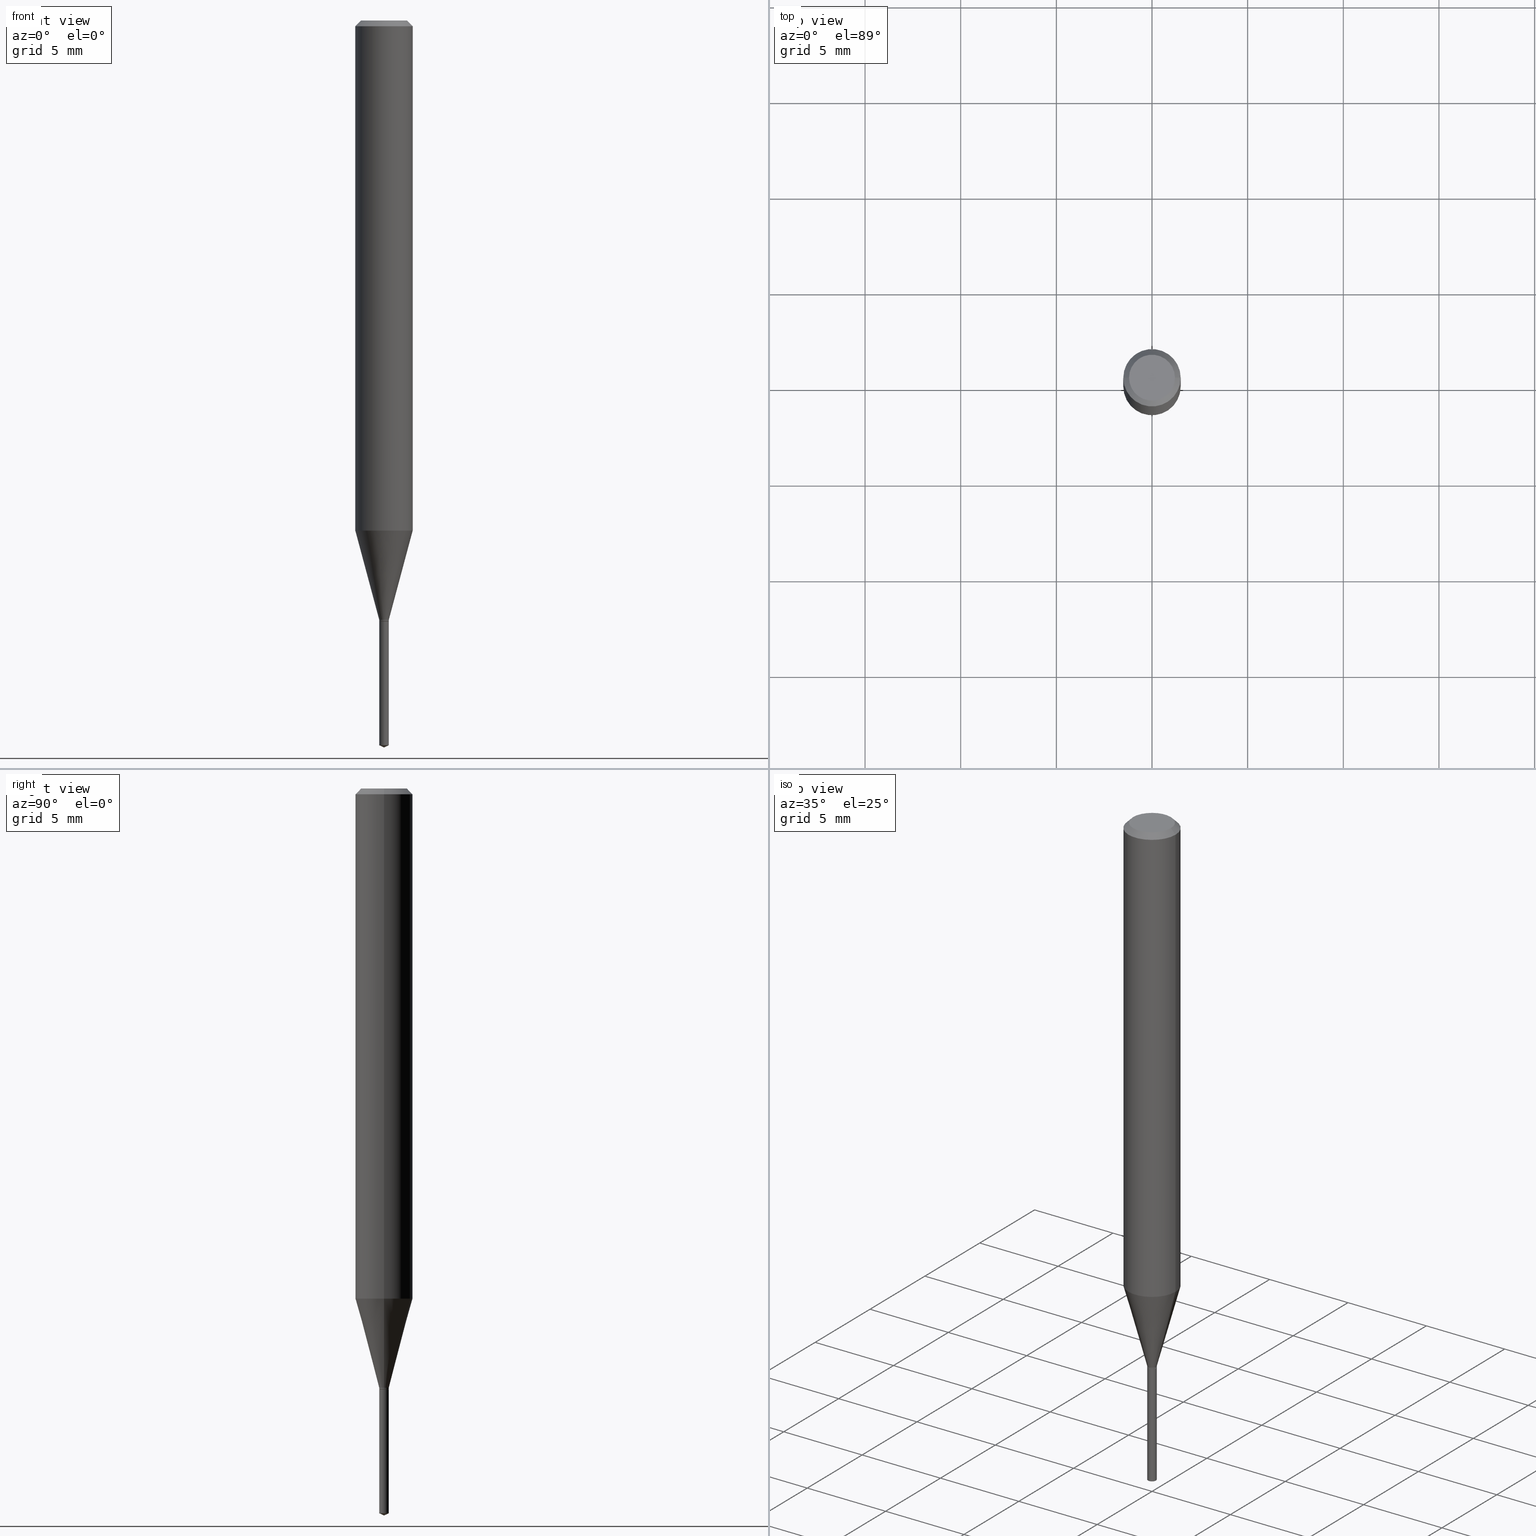
[diagram: canonical four-view strip — front | top / right | iso, engineering-drawing reading convention]
A machine part, canonical four-view strip (front | top / right | iso — engineering-drawing reading convention). The complete STEP part file that produces these views, byte-faithful:
ISO-10303-21;
HEADER;
FILE_DESCRIPTION (( 'STEP AP203' ),
    '1' );
FILE_NAME ('08091.STEP',
    '2024-04-24T11:12:27',
    ( '' ),
    ( '' ),
    'SwSTEP 2.0',
    'SolidWorks 2023',
    '' );
FILE_SCHEMA (( 'CONFIG_CONTROL_DESIGN' ));
ENDSEC;

DATA;
#1 = APPLICATION_PROTOCOL_DEFINITION ( 'international standard', 'config_control_design', 1994, #12 ) ;
#2 = CARTESIAN_POINT ( 'NONE',  ( 0.04724000000000000421, -3.852183633974369345E-16, -3.380025165621689721E-19 ) ) ;
#3 = PERSON_AND_ORGANIZATION ( #472, #237 ) ;
#4 = CARTESIAN_POINT ( 'NONE',  ( 2.888098660104664204E-31, -4.123439461173780263E-17, -0.01181000000000007218 ) ) ;
#5 = PERSON_AND_ORGANIZATION ( #472, #237 ) ;
#6 = APPROVAL ( #460, 'UNSPECIFIED' ) ;
#7 = DIRECTION ( 'NONE',  ( 0.2588190451025213501, 1.565188264969621968E-15, 0.9659258262890682012 ) ) ;
#8 = VECTOR ( 'NONE', #263, 39.37007874015748143 ) ;
#9 = AXIS2_PLACEMENT_3D ( 'NONE', #71, #361, #219 ) ;
#10 = COORDINATED_UNIVERSAL_TIME_OFFSET ( 5, 0, .BEHIND. ) ;
#11 = FACE_OUTER_BOUND ( 'NONE', #111, .T. ) ;
#12 = APPLICATION_CONTEXT ( 'configuration controlled 3d designs of mechanical parts and assemblies' ) ;
#13 = CARTESIAN_POINT ( 'NONE',  ( 3.658681167148986974E-29, -5.223583815807360950E-15, -1.496099999999999985 ) ) ;
#14 = ADVANCED_FACE ( 'NONE', ( #110 ), #68, .T. ) ;
#15 = CALENDAR_DATE ( 2024, 24, 4 ) ;
#16 = CARTESIAN_POINT ( 'NONE',  ( -6.878218237517947024E-17, -0.009850000000004313638, -1.236299999999999955 ) ) ;
#17 = ORIENTED_EDGE ( 'NONE', *, *, #230, .F. ) ;
#18 = CARTESIAN_POINT ( 'NONE',  ( 3.023333085086683703E-29, -4.316518379211780118E-15, -1.236299999999999955 ) ) ;
#19 = CARTESIAN_POINT ( 'NONE',  ( 0.05905000000000013016, -4.077292902400757654E-15, -1.049683100267611247 ) ) ;
#20 = EDGE_LOOP ( 'NONE', ( #131, #354, #483 ) ) ;
#21 = DIRECTION ( 'NONE',  ( -6.982962677686265133E-15, -1.000000000000000000, 0.000000000000000000 ) ) ;
#22 = PRODUCT_RELATED_PRODUCT_CATEGORY ( 'detail', '', ( #238 ) ) ;
#23 = VERTEX_POINT ( 'NONE', #143 ) ;
#24 = VECTOR ( 'NONE', #382, 39.37007874015748143 ) ;
#25 = AXIS2_PLACEMENT_3D ( 'NONE', #182, #367, #294 ) ;
#26 = ORIENTED_EDGE ( 'NONE', *, *, #335, .T. ) ;
#27 = CARTESIAN_POINT ( 'NONE',  ( 2.888098660104664204E-31, -4.123439461173780263E-17, -0.01181000000000007218 ) ) ;
#28 = VERTEX_POINT ( 'NONE', #254 ) ;
#29 = ORIENTED_EDGE ( 'NONE', *, *, #155, .F. ) ;
#30 = DESIGN_CONTEXT ( 'detailed design', #12, 'design' ) ;
#31 = FACE_OUTER_BOUND ( 'NONE', #63, .T. ) ;
#32 = CIRCLE ( 'NONE', #160, 0.009849999999999999381 ) ;
#33 = CONICAL_SURFACE ( 'NONE', #200, 0.009849999999999999381, 0.2617993877991500740 ) ;
#34 = CC_DESIGN_APPROVAL ( #440, ( #268 ) ) ;
#35 = VERTEX_POINT ( 'NONE', #331 ) ;
#36 = DIRECTION ( 'NONE',  ( -6.982962677686265133E-15, -1.000000000000000000, 0.000000000000000000 ) ) ;
#37 = DIRECTION ( 'NONE',  ( 1.000000000000000000, -6.982962677686276177E-15, 0.000000000000000000 ) ) ;
#38 = ORIENTED_EDGE ( 'NONE', *, *, #188, .F. ) ;
#39 = APPROVAL_DATE_TIME ( #374, #440 ) ;
#40 = DIRECTION ( 'NONE',  ( -6.982962677686265133E-15, -1.000000000000000000, 0.000000000000000000 ) ) ;
#41 = CARTESIAN_POINT ( 'NONE',  ( -9.261903463803131862E-28, 1.322371477110797904E-13, 37.87397874015748300 ) ) ;
#42 = CIRCLE ( 'NONE', #283, 0.009849999999999999381 ) ;
#43 = EDGE_CURVE ( 'NONE', #173, #23, #344, .T. ) ;
#44 = DATE_AND_TIME ( #381, #307 ) ;
#45 = DIRECTION ( 'NONE',  ( -2.445453492125453683E-29, 3.491503269448233447E-15, 1.000000000000000000 ) ) ;
#46 = ADVANCED_FACE ( 'NONE', ( #82 ), #180, .T. ) ;
#47 = APPLICATION_PROTOCOL_DEFINITION ( 'international standard', 'config_control_design', 1994, #355 ) ;
#48 = FACE_OUTER_BOUND ( 'NONE', #206, .T. ) ;
#49 =( NAMED_UNIT ( * ) PLANE_ANGLE_UNIT ( ) SI_UNIT ( $, .RADIAN. ) );
#50 = FACE_OUTER_BOUND ( 'NONE', #184, .T. ) ;
#51 = AXIS2_PLACEMENT_3D ( 'NONE', #256, #446, #175 ) ;
#52 = DIRECTION ( 'NONE',  ( -0.7071067811866191821, 7.493145998870612907E-15, 0.7071067811864758523 ) ) ;
#53 = EDGE_CURVE ( 'NONE', #284, #23, #462, .T. ) ;
#54 = APPROVAL_ROLE ( '' ) ;
#55 = CARTESIAN_POINT ( 'NONE',  ( 3.015996678668129136E-29, -4.306043935195251097E-15, -1.233299999999999841 ) ) ;
#56 = ORIENTED_EDGE ( 'NONE', *, *, #197, .F. ) ;
#57 = DIRECTION ( 'NONE',  ( 1.000000000000000000, -6.982962677686229634E-15, 0.000000000000000000 ) ) ;
#58 = VERTEX_POINT ( 'NONE', #86 ) ;
#59 = AXIS2_PLACEMENT_3D ( 'NONE', #277, #428, #201 ) ;
#60 = COORDINATED_UNIVERSAL_TIME_OFFSET ( 5, 0, .BEHIND. ) ;
#61 = LOCAL_TIME ( 7, 12, 27.00000000000000000, #60 ) ;
#62 = LINE ( 'NONE', #16, #353 ) ;
#63 = EDGE_LOOP ( 'NONE', ( #480, #358 ) ) ;
#64 = SHAPE_DEFINITION_REPRESENTATION ( #490, #140 ) ;
#65 = CYLINDRICAL_SURFACE ( 'NONE', #340, 0.009849999999999999381 ) ;
#66 = ORIENTED_EDGE ( 'NONE', *, *, #414, .F. ) ;
#67 = ORIENTED_EDGE ( 'NONE', *, *, #287, .F. ) ;
#68 = CONICAL_SURFACE ( 'NONE', #312, 0.009349999999999998937, 0.7853981633975496424 ) ;
#69 = CARTESIAN_POINT ( 'NONE',  ( 0.009349999999999998937, -4.381809080248147507E-15, -1.236299999999999955 ) ) ;
#70 = VECTOR ( 'NONE', #391, 39.37007874015748143 ) ;
#71 = CARTESIAN_POINT ( 'NONE',  ( 3.023333085086683703E-29, -4.316518379211780118E-15, -1.236299999999999955 ) ) ;
#72 = DIRECTION ( 'NONE',  ( 2.438088387897960049E-29, -3.491481338843145188E-15, -1.000000000000000000 ) ) ;
#73 = EDGE_CURVE ( 'NONE', #106, #284, #455, .T. ) ;
#74 = CARTESIAN_POINT ( 'NONE',  ( -0.009849999999999999381, -4.240419827396435201E-15, -1.235800000000000010 ) ) ;
#75 = CIRCLE ( 'NONE', #258, 0.009849999999999999381 ) ;
#76 = CC_DESIGN_PERSON_AND_ORGANIZATION_ASSIGNMENT ( #5, #156, ( #238 ) ) ;
#77 = ORIENTED_EDGE ( 'NONE', *, *, #43, .T. ) ;
#78 = PERSON_AND_ORGANIZATION ( #472, #237 ) ;
#79 = DIRECTION ( 'NONE',  ( 1.000000000000000000, -6.982962677686265922E-15, 4.876176775795935232E-29 ) ) ;
#80 = ADVANCED_FACE ( 'NONE', ( #383 ), #458, .T. ) ;
#81 = PERSON_AND_ORGANIZATION_ROLE ( 'classification_officer' ) ;
#82 = FACE_OUTER_BOUND ( 'NONE', #20, .T. ) ;
#83 = AXIS2_PLACEMENT_3D ( 'NONE', #272, #88, #158 ) ;
#84 = CC_DESIGN_DATE_AND_TIME_ASSIGNMENT ( #44, #433, ( #183 ) ) ;
#85 = AXIS2_PLACEMENT_3D ( 'NONE', #27, #119, #267 ) ;
#86 = CARTESIAN_POINT ( 'NONE',  ( 6.998845947240636105E-17, 0.009849999999995683389, -1.236299999999999955 ) ) ;
#87 = PERSON_AND_ORGANIZATION_ROLE ( 'creator' ) ;
#88 = DIRECTION ( 'NONE',  ( -2.445468806185136597E-29, 3.491481338843145583E-15, 1.000000000000000000 ) ) ;
#89 = ADVANCED_FACE ( 'NONE', ( #48 ), #423, .T. ) ;
#90 = DIRECTION ( 'NONE',  ( -6.982962677686265133E-15, -1.000000000000000000, 0.000000000000000000 ) ) ;
#91 = AXIS2_PLACEMENT_3D ( 'NONE', #279, #349, #468 ) ;
#92 = EDGE_CURVE ( 'NONE', #35, #173, #292, .T. ) ;
#93 = DIRECTION ( 'NONE',  ( -6.982962677686265133E-15, -1.000000000000000000, 0.000000000000000000 ) ) ;
#94 = ORIENTED_EDGE ( 'NONE', *, *, #287, .T. ) ;
#95 = DIRECTION ( 'NONE',  ( -2.445453492125453683E-29, 3.491503269448233447E-15, 1.000000000000000000 ) ) ;
#96 = VERTEX_POINT ( 'NONE', #231 ) ;
#97 = DIRECTION ( 'NONE',  ( -6.982962677686265133E-15, -1.000000000000000000, 0.000000000000000000 ) ) ;
#98 = AXIS2_PLACEMENT_3D ( 'NONE', #359, #134, #21 ) ;
#99 = DATE_AND_TIME ( #15, #61 ) ;
#100 = CARTESIAN_POINT ( 'NONE',  ( -6.878218237517947024E-17, -0.009850000000004313638, -1.236299999999999955 ) ) ;
#101 = DIRECTION ( 'NONE',  ( -2.445453492125453683E-29, 3.491503269448233447E-15, 1.000000000000000000 ) ) ;
#102 = VERTEX_POINT ( 'NONE', #337 ) ;
#103 = EDGE_CURVE ( 'NONE', #360, #323, #193, .T. ) ;
#104 = ORIENTED_EDGE ( 'NONE', *, *, #484, .T. ) ;
#105 = PLANE ( 'NONE',  #9 ) ;
#106 = VERTEX_POINT ( 'NONE', #196 ) ;
#107 = FACE_OUTER_BOUND ( 'NONE', #250, .T. ) ;
#108 = EDGE_CURVE ( 'NONE', #102, #478, #32, .T. ) ;
#109 = DIRECTION ( 'NONE',  ( 1.000000000000000000, -6.982962677686266711E-15, 4.876176775795936353E-29 ) ) ;
#110 = FACE_OUTER_BOUND ( 'NONE', #297, .T. ) ;
#111 = EDGE_LOOP ( 'NONE', ( #338, #77, #104, #442 ) ) ;
#112 = ADVANCED_FACE ( 'NONE', ( #273 ), #352, .T. ) ;
#113 = APPROVAL_STATUS ( 'not_yet_approved' ) ;
#114 = CIRCLE ( 'NONE', #450, 0.04724000000000000421 ) ;
#115 = DATE_TIME_ROLE ( 'creation_date' ) ;
#116 = DIRECTION ( 'NONE',  ( -2.445468806185136597E-29, 3.491481338843145583E-15, 1.000000000000000000 ) ) ;
#117 = SECURITY_CLASSIFICATION_LEVEL ( 'unclassified' ) ;
#118 = DIRECTION ( 'NONE',  ( 1.000000000000000000, -6.982962677686266711E-15, 0.000000000000000000 ) ) ;
#119 = DIRECTION ( 'NONE',  ( -2.445468806185136597E-29, 3.491481338843145583E-15, 1.000000000000000000 ) ) ;
#120 = DIRECTION ( 'NONE',  ( -2.445453492125453683E-29, 3.491503269448233447E-15, 1.000000000000000000 ) ) ;
#121 = CIRCLE ( 'NONE', #51, 0.009849999999999999381 ) ;
#122 = APPROVAL_PERSON_ORGANIZATION ( #315, #343, #54 ) ;
#123 = DIMENSIONAL_EXPONENTS ( 1.000000000000000000, 0.000000000000000000, 0.000000000000000000, 0.000000000000000000, 0.000000000000000000, 0.000000000000000000, 0.000000000000000000 ) ;
#124 = DIRECTION ( 'NONE',  ( -1.000000000000000000, 6.982962677686266711E-15, 0.000000000000000000 ) ) ;
#125 = CARTESIAN_POINT ( 'NONE',  ( -9.261903463803131862E-28, 1.322371477110797904E-13, 37.87397874015748300 ) ) ;
#126 = CARTESIAN_POINT ( 'NONE',  ( -0.009349999999999998937, -4.247433406244099767E-15, -1.236299999999999955 ) ) ;
#127 = AXIS2_PLACEMENT_3D ( 'NONE', #159, #306, #79 ) ;
#128 = VECTOR ( 'NONE', #319, 39.37007874015748143 ) ;
#129 = EDGE_CURVE ( 'NONE', #473, #241, #233, .T. ) ;
#130 = LINE ( 'NONE', #235, #70 ) ;
#131 = ORIENTED_EDGE ( 'NONE', *, *, #194, .F. ) ;
#132 = DIRECTION ( 'NONE',  ( -2.445468806185136597E-29, 3.491481338843145583E-15, 1.000000000000000000 ) ) ;
#133 = ORIENTED_EDGE ( 'NONE', *, *, #191, .T. ) ;
#134 = DIRECTION ( 'NONE',  ( -2.445453492125453683E-29, 3.491503269448233447E-15, 1.000000000000000000 ) ) ;
#135 = EDGE_LOOP ( 'NONE', ( #371, #325, #289, #67 ) ) ;
#136 = CARTESIAN_POINT ( 'NONE',  ( 3.023333085086683703E-29, -4.316518379211780118E-15, -1.236299999999999955 ) ) ;
#137 = EDGE_LOOP ( 'NONE', ( #430, #329, #477, #38 ) ) ;
#138 = ADVANCED_FACE ( 'NONE', ( #50 ), #424, .F. ) ;
#139 = DIRECTION ( 'NONE',  ( 1.000000000000000000, -6.982962677686266711E-15, 4.876176775795936353E-29 ) ) ;
#140 = ADVANCED_BREP_SHAPE_REPRESENTATION ( '08091', ( #397, #234, #299 ), #451 ) ;
#141 = ORIENTED_EDGE ( 'NONE', *, *, #92, .F. ) ;
#142 = LINE ( 'NONE', #145, #322 ) ;
#143 = CARTESIAN_POINT ( 'NONE',  ( 0.05904999999999999832, -4.535783407291118600E-16, -0.01181000000000007218 ) ) ;
#144 = AXIS2_PLACEMENT_3D ( 'NONE', #304, #302, #347 ) ;
#145 = CARTESIAN_POINT ( 'NONE',  ( -0.009849999999999999381, -4.236055475722881048E-15, -1.233299999999999841 ) ) ;
#146 = APPROVAL_PERSON_ORGANIZATION ( #486, #6, #271 ) ;
#147 = CARTESIAN_POINT ( 'NONE',  ( 4.132873053354867254E-48, -5.900647395337818946E-34, -1.690012582823346072E-19 ) ) ;
#148 = ADVANCED_FACE ( 'NONE', ( #11 ), #152, .T. ) ;
#149 = EDGE_LOOP ( 'NONE', ( #165, #286 ) ) ;
#150 = CARTESIAN_POINT ( 'NONE',  ( 0.000000000000000000, 0.000000000000000000, 0.000000000000000000 ) ) ;
#151 = LENGTH_MEASURE_WITH_UNIT ( LENGTH_MEASURE( 0.02539999999999999897 ), #456 );
#152 = CONICAL_SURFACE ( 'NONE', #350, 0.05904999999999999832, 0.7853981633974452814 ) ;
#153 = CARTESIAN_POINT ( 'NONE',  ( 3.022110350683592022E-29, -4.314772638542359403E-15, -1.235800000000000010 ) ) ;
#154 = CIRCLE ( 'NONE', #91, 0.05905000000000013710 ) ;
#155 = EDGE_CURVE ( 'NONE', #241, #373, #75, .T. ) ;
#156 = PERSON_AND_ORGANIZATION_ROLE ( 'design_owner' ) ;
#157 = DIRECTION ( 'NONE',  ( 0.7071067811865453523, -7.319954787623248157E-15, -0.7071067811865496822 ) ) ;
#158 = DIRECTION ( 'NONE',  ( 1.000000000000000000, -6.982962677686266711E-15, 4.876185090822587894E-29 ) ) ;
#159 = CARTESIAN_POINT ( 'NONE',  ( 0.000000000000000000, 0.000000000000000000, 0.000000000000000000 ) ) ;
#160 = AXIS2_PLACEMENT_3D ( 'NONE', #189, #120, #40 ) ;
#161 = AXIS2_PLACEMENT_3D ( 'NONE', #55, #466, #470 ) ;
#162 = DIRECTION ( 'NONE',  ( -6.982962677686268288E-15, -1.000000000000000000, 3.520397390770351318E-15 ) ) ;
#163 = DIRECTION ( 'NONE',  ( -2.445453492125453683E-29, 3.491503269448233447E-15, 1.000000000000000000 ) ) ;
#164 = CARTESIAN_POINT ( 'NONE',  ( 3.658642969568891371E-29, -5.223638041421501490E-15, -1.496099999999999985 ) ) ;
#165 = ORIENTED_EDGE ( 'NONE', *, *, #92, .T. ) ;
#166 = VECTOR ( 'NONE', #334, 39.37007874015748143 ) ;
#167 = LINE ( 'NONE', #13, #205 ) ;
#168 = ORIENTED_EDGE ( 'NONE', *, *, #222, .F. ) ;
#169 = CARTESIAN_POINT ( 'NONE',  ( 0.009849999999999999381, -6.878218237520971813E-17, 4.803034124158995733E-31 ) ) ;
#170 = ORIENTED_EDGE ( 'NONE', *, *, #129, .T. ) ;
#171 = DIRECTION ( 'NONE',  ( -2.445468806185136597E-29, 3.491481338843145583E-15, 1.000000000000000000 ) ) ;
#172 = EDGE_CURVE ( 'NONE', #173, #35, #114, .T. ) ;
#173 = VERTEX_POINT ( 'NONE', #2 ) ;
#174 = CIRCLE ( 'NONE', #85, 0.05904999999999999832 ) ;
#175 = DIRECTION ( 'NONE',  ( 1.000000000000000000, -6.982962677686278543E-15, 0.000000000000000000 ) ) ;
#176 = EDGE_LOOP ( 'NONE', ( #203, #141, #390, #489 ) ) ;
#177 = ORIENTED_EDGE ( 'NONE', *, *, #326, .T. ) ;
#178 = PLANE ( 'NONE',  #333 ) ;
#179 = DIRECTION ( 'NONE',  ( -2.445468806185136597E-29, 3.491481338843145583E-15, 1.000000000000000000 ) ) ;
#180 = CONICAL_SURFACE ( 'NONE', #266, 84.42940631927679362, 1.134464013796327109 ) ;
#181 = APPROVAL_PERSON_ORGANIZATION ( #78, #440, #260 ) ;
#182 = CARTESIAN_POINT ( 'NONE',  ( 2.566967278084148050E-29, -3.664948956283382734E-15, -1.049683100267611247 ) ) ;
#183 = SECURITY_CLASSIFICATION ( '', '', #117 ) ;
#184 = EDGE_LOOP ( 'NONE', ( #209, #26 ) ) ;
#185 = CARTESIAN_POINT ( 'NONE',  ( 3.015996678668129136E-29, -4.306043935195251097E-15, -1.233299999999999841 ) ) ;
#186 = DATE_AND_TIME ( #449, #364 ) ;
#187 = DIRECTION ( 'NONE',  ( 2.445468806185136597E-29, -3.491481338843145583E-15, -1.000000000000000000 ) ) ;
#188 = EDGE_CURVE ( 'NONE', #323, #23, #236, .T. ) ;
#189 = CARTESIAN_POINT ( 'NONE',  ( 3.647429615484133515E-29, -5.207573998691215468E-15, -1.491506869567173377 ) ) ;
#190 = CIRCLE ( 'NONE', #25, 0.05905000000000013710 ) ;
#191 = EDGE_CURVE ( 'NONE', #373, #28, #417, .T. ) ;
#192 = PERSON_AND_ORGANIZATION ( #472, #237 ) ;
#193 = LINE ( 'NONE', #375, #332 ) ;
#194 = EDGE_CURVE ( 'NONE', #96, #478, #434, .T. ) ;
#195 = MECHANICAL_CONTEXT ( 'NONE', #355, 'mechanical' ) ;
#196 = CARTESIAN_POINT ( 'NONE',  ( 0.009849999999999999381, -4.374826117570460704E-15, -1.233299999999999841 ) ) ;
#197 = EDGE_CURVE ( 'NONE', #373, #241, #42, .T. ) ;
#198 = DIRECTION ( 'NONE',  ( -2.445468806185136877E-29, 3.491481338843145188E-15, 1.000000000000000000 ) ) ;
#199 = AXIS2_PLACEMENT_3D ( 'NONE', #125, #45, #162 ) ;
#200 = AXIS2_PLACEMENT_3D ( 'NONE', #185, #253, #372 ) ;
#201 = DIRECTION ( 'NONE',  ( 1.000000000000000000, -6.982962677686278543E-15, 0.000000000000000000 ) ) ;
#202 = CARTESIAN_POINT ( 'NONE',  ( -0.009349999999999998937, -4.250082633418210968E-15, -1.236299999999999955 ) ) ;
#203 = ORIENTED_EDGE ( 'NONE', *, *, #43, .F. ) ;
#204 = FACE_OUTER_BOUND ( 'NONE', #411, .T. ) ;
#205 = VECTOR ( 'NONE', #317, 39.37007874015748854 ) ;
#206 = EDGE_LOOP ( 'NONE', ( #280, #133, #217, #482 ) ) ;
#207 = VECTOR ( 'NONE', #52, 39.37007874015748143 ) ;
#208 = DIRECTION ( 'NONE',  ( -2.445453492125453683E-29, 3.491503269448233447E-15, 1.000000000000000000 ) ) ;
#209 = ORIENTED_EDGE ( 'NONE', *, *, #401, .T. ) ;
#210 = LINE ( 'NONE', #169, #128 ) ;
#211 = VERTEX_POINT ( 'NONE', #100 ) ;
#212 = ORIENTED_EDGE ( 'NONE', *, *, #191, .F. ) ;
#213 = VECTOR ( 'NONE', #345, 39.37007874015748143 ) ;
#214 = AXIS2_PLACEMENT_3D ( 'NONE', #242, #132, #465 ) ;
#215 = ADVANCED_FACE ( 'NONE', ( #387 ), #426, .T. ) ;
#216 = ORIENTED_EDGE ( 'NONE', *, *, #197, .T. ) ;
#217 = ORIENTED_EDGE ( 'NONE', *, *, #404, .F. ) ;
#218 = AXIS2_PLACEMENT_3D ( 'NONE', #281, #171, #321 ) ;
#219 = DIRECTION ( 'NONE',  ( 1.000000000000000000, -6.982962677686265922E-15, 4.876176775795935793E-29 ) ) ;
#220 = DIRECTION ( 'NONE',  ( -2.445468806185136597E-29, 3.491481338843145583E-15, 1.000000000000000000 ) ) ;
#221 = COORDINATED_UNIVERSAL_TIME_OFFSET ( 5, 0, .BEHIND. ) ;
#222 = EDGE_CURVE ( 'NONE', #28, #106, #293, .T. ) ;
#223 = DIRECTION ( 'NONE',  ( -6.982962677686268288E-15, -1.000000000000000000, 3.520397390770351318E-15 ) ) ;
#224 = ORIENTED_EDGE ( 'NONE', *, *, #53, .F. ) ;
#225 = DIRECTION ( 'NONE',  ( 1.000000000000000000, 0.000000000000000000, 0.000000000000000000 ) ) ;
#226 = CARTESIAN_POINT ( 'NONE',  ( 8.265746106709734507E-48, -1.180129479067563789E-33, -3.380025165646692144E-19 ) ) ;
#227 = COORDINATED_UNIVERSAL_TIME_OFFSET ( 5, 0, .BEHIND. ) ;
#228 = CARTESIAN_POINT ( 'NONE',  ( -0.009849999999999999381, 6.998845947236986391E-17, -4.845151063901081251E-31 ) ) ;
#229 = AXIS2_PLACEMENT_3D ( 'NONE', #400, #179, #139 ) ;
#230 = EDGE_CURVE ( 'NONE', #336, #373, #395, .T. ) ;
#231 = CARTESIAN_POINT ( 'NONE',  ( 3.658642969568890811E-29, -5.223638041421501490E-15, -1.496099999999999985 ) ) ;
#232 =( NAMED_UNIT ( * ) SI_UNIT ( $, .STERADIAN. ) SOLID_ANGLE_UNIT ( ) );
#233 = LINE ( 'NONE', #385, #8 ) ;
#234 = MANIFOLD_SOLID_BREP ( 'Body-Move/Copy2[2]', #363 ) ;
#235 = CARTESIAN_POINT ( 'NONE',  ( 6.998845947240008714E-17, 0.009849999999995683389, -1.236299999999999955 ) ) ;
#236 = CIRCLE ( 'NONE', #275, 0.05904999999999999832 ) ;
#237 = ORGANIZATION ( 'UNSPECIFIED', 'UNSPECIFIED', '' ) ;
#238 = PRODUCT ( '08091', '08091', '', ( #195 ) ) ;
#239 = EDGE_CURVE ( 'NONE', #102, #58, #130, .T. ) ;
#240 = CARTESIAN_POINT ( 'NONE',  ( 0.009849999999999999381, -4.383554820917568222E-15, -1.235800000000000010 ) ) ;
#241 = VERTEX_POINT ( 'NONE', #240 ) ;
#242 = CARTESIAN_POINT ( 'NONE',  ( 3.023333085086683703E-29, -4.316518379211780118E-15, -1.236299999999999955 ) ) ;
#243 = CONICAL_SURFACE ( 'NONE', #59, 0.009849999999999999381, 0.2617993877991500740 ) ;
#244 = CC_DESIGN_SECURITY_CLASSIFICATION ( #183, ( #268 ) ) ;
#245 = ADVANCED_FACE ( 'NONE', ( #204 ), #243, .T. ) ;
#246 = APPROVAL_DATE_TIME ( #99, #343 ) ;
#247 = CARTESIAN_POINT ( 'NONE',  ( 3.023333085086683703E-29, -4.316518379211780118E-15, -1.236299999999999955 ) ) ;
#248 = DIRECTION ( 'NONE',  ( -2.445468806185136597E-29, 3.491481338843145583E-15, 1.000000000000000000 ) ) ;
#249 = ADVANCED_FACE ( 'NONE', ( #348 ), #410, .T. ) ;
#250 = EDGE_LOOP ( 'NONE', ( #427, #328, #439, #66 ) ) ;
#251 = CIRCLE ( 'NONE', #380, 0.009849999999999999381 ) ;
#252 = UNCERTAINTY_MEASURE_WITH_UNIT (LENGTH_MEASURE( 1.000000000000000082E-05 ), #305, 'distance_accuracy_value', 'NONE');
#253 = DIRECTION ( 'NONE',  ( -2.445468806185136597E-29, 3.491481338843145583E-15, 1.000000000000000000 ) ) ;
#254 = CARTESIAN_POINT ( 'NONE',  ( -0.009849999999999999381, -4.240419827396435201E-15, -1.233299999999999841 ) ) ;
#255 = FACE_OUTER_BOUND ( 'NONE', #368, .T. ) ;
#256 = CARTESIAN_POINT ( 'NONE',  ( 3.015996678668129136E-29, -4.306043935195251097E-15, -1.233299999999999841 ) ) ;
#257 = EDGE_LOOP ( 'NONE', ( #485, #406, #94, #412 ) ) ;
#258 = AXIS2_PLACEMENT_3D ( 'NONE', #153, #300, #453 ) ;
#259 = EDGE_CURVE ( 'NONE', #284, #360, #154, .T. ) ;
#260 = APPROVAL_ROLE ( '' ) ;
#261 = ORIENTED_EDGE ( 'NONE', *, *, #129, .F. ) ;
#262 = CALENDAR_DATE ( 2024, 24, 4 ) ;
#263 = DIRECTION ( 'NONE',  ( 0.7071067811866191821, -2.468850131083007662E-15, 0.7071067811864758523 ) ) ;
#264 = PERSON_AND_ORGANIZATION ( #472, #237 ) ;
#265 = CARTESIAN_POINT ( 'NONE',  ( 0.05905000000000006771, -4.123439461173745257E-16, 2.879382386107503723E-30 ) ) ;
#266 = AXIS2_PLACEMENT_3D ( 'NONE', #41, #457, #223 ) ;
#267 = DIRECTION ( 'NONE',  ( 1.000000000000000000, -6.982962677686266711E-15, 0.000000000000000000 ) ) ;
#268 = PRODUCT_DEFINITION_FORMATION_WITH_SPECIFIED_SOURCE ( 'ANY', '', #238, .NOT_KNOWN. ) ;
#269 = CARTESIAN_POINT ( 'NONE',  ( 2.888098660104664204E-31, -4.123439461173780263E-17, -0.01181000000000007218 ) ) ;
#270 = CC_DESIGN_PERSON_AND_ORGANIZATION_ASSIGNMENT ( #3, #376, ( #268 ) ) ;
#271 = APPROVAL_ROLE ( '' ) ;
#272 = CARTESIAN_POINT ( 'NONE',  ( 8.265746106709734507E-48, -1.180129479067563789E-33, -3.380025165646692144E-19 ) ) ;
#273 = FACE_OUTER_BOUND ( 'NONE', #176, .T. ) ;
#274 = DIRECTION ( 'NONE',  ( -2.445468806185136597E-29, 3.491481338843145583E-15, 1.000000000000000000 ) ) ;
#275 = AXIS2_PLACEMENT_3D ( 'NONE', #377, #342, #118 ) ;
#276 = EDGE_CURVE ( 'NONE', #336, #473, #481, .T. ) ;
#277 = CARTESIAN_POINT ( 'NONE',  ( 3.015996678668129136E-29, -4.306043935195251097E-15, -1.233299999999999841 ) ) ;
#278 = EDGE_LOOP ( 'NONE', ( #467, #314, #296, #224 ) ) ;
#279 = CARTESIAN_POINT ( 'NONE',  ( 2.566967278084148050E-29, -3.664948956283382734E-15, -1.049683100267611247 ) ) ;
#280 = ORIENTED_EDGE ( 'NONE', *, *, #155, .T. ) ;
#281 = CARTESIAN_POINT ( 'NONE',  ( 3.023333085086683703E-29, -4.316518379211780118E-15, -1.236299999999999955 ) ) ;
#282 = AXIS2_PLACEMENT_3D ( 'NONE', #4, #461, #124 ) ;
#283 = AXIS2_PLACEMENT_3D ( 'NONE', #311, #389, #57 ) ;
#284 = VERTEX_POINT ( 'NONE', #19 ) ;
#285 = DIRECTION ( 'NONE',  ( 1.000000000000000000, -6.982962677686276177E-15, 0.000000000000000000 ) ) ;
#286 = ORIENTED_EDGE ( 'NONE', *, *, #172, .T. ) ;
#287 = EDGE_CURVE ( 'NONE', #478, #211, #62, .T. ) ;
#288 = LINE ( 'NONE', #330, #166 ) ;
#289 = ORIENTED_EDGE ( 'NONE', *, *, #401, .F. ) ;
#290 = CC_DESIGN_PERSON_AND_ORGANIZATION_ASSIGNMENT ( #192, #413, ( #268 ) ) ;
#291 = CARTESIAN_POINT ( 'NONE',  ( 3.023333085086683703E-29, -4.316518379211780118E-15, -1.236299999999999955 ) ) ;
#292 = CIRCLE ( 'NONE', #83, 0.04724000000000000421 ) ;
#293 = CIRCLE ( 'NONE', #161, 0.009849999999999999381 ) ;
#294 = DIRECTION ( 'NONE',  ( 1.000000000000000000, -6.982962677686264344E-15, 0.000000000000000000 ) ) ;
#295 = CARTESIAN_POINT ( 'NONE',  ( 0.000000000000000000, 0.000000000000000000, 0.000000000000000000 ) ) ;
#296 = ORIENTED_EDGE ( 'NONE', *, *, #484, .F. ) ;
#297 = EDGE_LOOP ( 'NONE', ( #177, #469, #29, #261 ) ) ;
#298 = DATE_AND_TIME ( #341, #418 ) ;
#299 = AXIS2_PLACEMENT_3D ( 'NONE', #384, #416, #225 ) ;
#300 = DIRECTION ( 'NONE',  ( -2.445468806185136597E-29, 3.491481338843145583E-15, 1.000000000000000000 ) ) ;
#301 = ADVANCED_FACE ( 'NONE', ( #351 ), #65, .T. ) ;
#302 = DIRECTION ( 'NONE',  ( 2.445453492125453403E-29, -3.491503269448233447E-15, -1.000000000000000000 ) ) ;
#303 = EDGE_CURVE ( 'NONE', #96, #102, #167, .T. ) ;
#304 = CARTESIAN_POINT ( 'NONE',  ( 3.023333085086683703E-29, -4.316518379211780118E-15, -1.236299999999999955 ) ) ;
#305 =( CONVERSION_BASED_UNIT ( 'INCH', #151 ) LENGTH_UNIT ( ) NAMED_UNIT ( #123 ) );
#306 = DIRECTION ( 'NONE',  ( -2.445468806185136597E-29, 3.491481338843145583E-15, 1.000000000000000000 ) ) ;
#307 = LOCAL_TIME ( 7, 12, 27.00000000000000000, #227 ) ;
#308 = CARTESIAN_POINT ( 'NONE',  ( 0.05904999999999999832, -4.463468013801466955E-16, -0.01181000000000007218 ) ) ;
#309 = EDGE_CURVE ( 'NONE', #241, #106, #210, .T. ) ;
#310 = CARTESIAN_POINT ( 'NONE',  ( 3.023333085086683703E-29, -4.316518379211780118E-15, -1.236299999999999955 ) ) ;
#311 = CARTESIAN_POINT ( 'NONE',  ( 3.022110350683592022E-29, -4.314772638542359403E-15, -1.235800000000000010 ) ) ;
#312 = AXIS2_PLACEMENT_3D ( 'NONE', #402, #220, #37 ) ;
#313 = AXIS2_PLACEMENT_3D ( 'NONE', #150, #248, #443 ) ;
#314 = ORIENTED_EDGE ( 'NONE', *, *, #103, .T. ) ;
#315 = PERSON_AND_ORGANIZATION ( #472, #237 ) ;
#316 = EDGE_CURVE ( 'NONE', #478, #102, #464, .T. ) ;
#317 = DIRECTION ( 'NONE',  ( 6.439704144417063485E-15, 0.9063077870366568201, 0.4226182617406846753 ) ) ;
#318 = ORIENTED_EDGE ( 'NONE', *, *, #479, .T. ) ;
#319 = DIRECTION ( 'NONE',  ( -2.445468806185136877E-29, 3.491481338843145188E-15, 1.000000000000000000 ) ) ;
#320 = ORIENTED_EDGE ( 'NONE', *, *, #73, .F. ) ;
#321 = DIRECTION ( 'NONE',  ( 1.000000000000000000, -6.982962677686276177E-15, 0.000000000000000000 ) ) ;
#322 = VECTOR ( 'NONE', #366, 39.37007874015747433 ) ;
#323 = VERTEX_POINT ( 'NONE', #463 ) ;
#324 = CYLINDRICAL_SURFACE ( 'NONE', #229, 0.05905000000000006771 ) ;
#325 = ORIENTED_EDGE ( 'NONE', *, *, #239, .T. ) ;
#326 = EDGE_CURVE ( 'NONE', #473, #336, #445, .T. ) ;
#327 = CARTESIAN_POINT ( 'NONE',  ( -0.05905000000000013016, -3.245373470817042452E-15, -1.049683100267611247 ) ) ;
#328 = ORIENTED_EDGE ( 'NONE', *, *, #222, .T. ) ;
#329 = ORIENTED_EDGE ( 'NONE', *, *, #414, .T. ) ;
#330 = CARTESIAN_POINT ( 'NONE',  ( -0.05904999999999999832, 3.711095515056362547E-16, -0.01181000000000007218 ) ) ;
#331 = CARTESIAN_POINT ( 'NONE',  ( -0.04724000000000000421, 3.504923541997677355E-16, -3.380025165670481712E-19 ) ) ;
#332 = VECTOR ( 'NONE', #198, 39.37007874015748143 ) ;
#333 = AXIS2_PLACEMENT_3D ( 'NONE', #147, #72, #370 ) ;
#334 = DIRECTION ( 'NONE',  ( -0.7071067811865453523, 2.468850131082234184E-15, -0.7071067811865496822 ) ) ;
#335 = EDGE_CURVE ( 'NONE', #58, #211, #251, .T. ) ;
#336 = VERTEX_POINT ( 'NONE', #126 ) ;
#337 = CARTESIAN_POINT ( 'NONE',  ( 6.998845947240633640E-17, 0.009849999999994791741, -1.491506869567173377 ) ) ;
#338 = ORIENTED_EDGE ( 'NONE', *, *, #172, .F. ) ;
#339 = VECTOR ( 'NONE', #7, 39.37007874015747433 ) ;
#340 = AXIS2_PLACEMENT_3D ( 'NONE', #18, #431, #97 ) ;
#341 = CALENDAR_DATE ( 2024, 24, 4 ) ;
#342 = DIRECTION ( 'NONE',  ( -2.445468806185136597E-29, 3.491481338843145583E-15, 1.000000000000000000 ) ) ;
#343 = APPROVAL ( #388, 'UNSPECIFIED' ) ;
#344 = LINE ( 'NONE', #308, #444 ) ;
#345 = DIRECTION ( 'NONE',  ( -2.445468806185136877E-29, 3.491481338843145188E-15, 1.000000000000000000 ) ) ;
#346 = COORDINATED_UNIVERSAL_TIME_OFFSET ( 5, 0, .BEHIND. ) ;
#347 = DIRECTION ( 'NONE',  ( 6.982962677686265922E-15, 1.000000000000000000, -3.491503269448233447E-15 ) ) ;
#348 = FACE_OUTER_BOUND ( 'NONE', #409, .T. ) ;
#349 = DIRECTION ( 'NONE',  ( -2.445468806185136597E-29, 3.491481338843145583E-15, 1.000000000000000000 ) ) ;
#350 = AXIS2_PLACEMENT_3D ( 'NONE', #269, #187, #420 ) ;
#351 = FACE_OUTER_BOUND ( 'NONE', #257, .T. ) ;
#352 = CONICAL_SURFACE ( 'NONE', #282, 0.05904999999999999832, 0.7853981633974452814 ) ;
#353 = VECTOR ( 'NONE', #95, 39.37007874015748143 ) ;
#354 = ORIENTED_EDGE ( 'NONE', *, *, #303, .T. ) ;
#355 = APPLICATION_CONTEXT ( 'configuration controlled 3d designs of mechanical parts and assemblies' ) ;
#356 = ADVANCED_FACE ( 'NONE', ( #474 ), #178, .F. ) ;
#357 = DIRECTION ( 'NONE',  ( -6.328713451373407244E-15, -0.9063077870366539335, 0.4226182617406910036 ) ) ;
#358 = ORIENTED_EDGE ( 'NONE', *, *, #276, .F. ) ;
#359 = CARTESIAN_POINT ( 'NONE',  ( 3.647429615484133515E-29, -5.207573998691215468E-15, -1.491506869567173377 ) ) ;
#360 = VERTEX_POINT ( 'NONE', #327 ) ;
#361 = DIRECTION ( 'NONE',  ( -2.438088387897960049E-29, 3.491481338843145188E-15, 1.000000000000000000 ) ) ;
#362 = ORIENTED_EDGE ( 'NONE', *, *, #309, .T. ) ;
#363 = CLOSED_SHELL ( 'NONE', ( #14, #148, #437, #245, #89, #421, #369, #452, #112, #356, #398, #249 ) ) ;
#364 = LOCAL_TIME ( 7, 12, 27.00000000000000000, #346 ) ;
#365 = ORIENTED_EDGE ( 'NONE', *, *, #303, .F. ) ;
#366 = DIRECTION ( 'NONE',  ( -0.2588190451025213501, 5.211531920934551042E-15, 0.9659258262890682012 ) ) ;
#367 = DIRECTION ( 'NONE',  ( -2.445468806185136597E-29, 3.491481338843145583E-15, 1.000000000000000000 ) ) ;
#368 = EDGE_LOOP ( 'NONE', ( #212, #216, #362, #168 ) ) ;
#369 = ADVANCED_FACE ( 'NONE', ( #107 ), #33, .T. ) ;
#370 = DIRECTION ( 'NONE',  ( -1.000000000000000000, 6.982962677686265922E-15, -4.876176775795935793E-29 ) ) ;
#371 = ORIENTED_EDGE ( 'NONE', *, *, #316, .T. ) ;
#372 = DIRECTION ( 'NONE',  ( 1.000000000000000000, -6.982962677686278543E-15, 0.000000000000000000 ) ) ;
#373 = VERTEX_POINT ( 'NONE', #74 ) ;
#374 = DATE_AND_TIME ( #262, #459 ) ;
#375 = CARTESIAN_POINT ( 'NONE',  ( -0.05905000000000006771, 4.195754854663396409E-16, -2.904631170795525045E-30 ) ) ;
#376 = PERSON_AND_ORGANIZATION_ROLE ( 'design_supplier' ) ;
#377 = CARTESIAN_POINT ( 'NONE',  ( 2.888098660104664204E-31, -4.123439461173780263E-17, -0.01181000000000007218 ) ) ;
#378 = CC_DESIGN_DATE_AND_TIME_ASSIGNMENT ( #298, #115, ( #429 ) ) ;
#379 = CLOSED_SHELL ( 'NONE', ( #215, #46, #80, #301, #138 ) ) ;
#380 = AXIS2_PLACEMENT_3D ( 'NONE', #136, #163, #90 ) ;
#381 = CALENDAR_DATE ( 2024, 24, 4 ) ;
#382 = DIRECTION ( 'NONE',  ( -2.445468806185136877E-29, 3.491481338843145188E-15, 1.000000000000000000 ) ) ;
#383 = FACE_OUTER_BOUND ( 'NONE', #432, .T. ) ;
#384 = CARTESIAN_POINT ( 'NONE',  ( 0.000000000000000000, 0.000000000000000000, 0.000000000000000000 ) ) ;
#385 = CARTESIAN_POINT ( 'NONE',  ( 0.009349999999999998937, -4.381809080248147507E-15, -1.236299999999999955 ) ) ;
#386 = CC_DESIGN_PERSON_AND_ORGANIZATION_ASSIGNMENT ( #422, #87, ( #429 ) ) ;
#387 = FACE_OUTER_BOUND ( 'NONE', #135, .T. ) ;
#388 = APPROVAL_STATUS ( 'not_yet_approved' ) ;
#389 = DIRECTION ( 'NONE',  ( -2.445468806185136597E-29, 3.491481338843145583E-15, 1.000000000000000000 ) ) ;
#390 = ORIENTED_EDGE ( 'NONE', *, *, #447, .T. ) ;
#391 = DIRECTION ( 'NONE',  ( -2.445453492125453683E-29, 3.491503269448233447E-15, 1.000000000000000000 ) ) ;
#392 = AXIS2_PLACEMENT_3D ( 'NONE', #295, #448, #109 ) ;
#393 = CC_DESIGN_APPROVAL ( #343, ( #183 ) ) ;
#394 = ORIENTED_EDGE ( 'NONE', *, *, #404, .T. ) ;
#395 = LINE ( 'NONE', #202, #207 ) ;
#396 = ORIENTED_EDGE ( 'NONE', *, *, #276, .T. ) ;
#397 = MANIFOLD_SOLID_BREP ( 'Body-Move/Copy2[1]', #379 ) ;
#398 = ADVANCED_FACE ( 'NONE', ( #31 ), #105, .F. ) ;
#399 = ORIENTED_EDGE ( 'NONE', *, *, #108, .F. ) ;
#400 = CARTESIAN_POINT ( 'NONE',  ( 0.000000000000000000, 0.000000000000000000, 0.000000000000000000 ) ) ;
#401 = EDGE_CURVE ( 'NONE', #211, #58, #471, .T. ) ;
#402 = CARTESIAN_POINT ( 'NONE',  ( 3.023333085086683703E-29, -4.316518379211780118E-15, -1.236299999999999955 ) ) ;
#403 = AXIS2_PLACEMENT_3D ( 'NONE', #291, #101, #36 ) ;
#404 = EDGE_CURVE ( 'NONE', #106, #28, #121, .T. ) ;
#405 = CYLINDRICAL_SURFACE ( 'NONE', #313, 0.009849999999999999381 ) ;
#406 = ORIENTED_EDGE ( 'NONE', *, *, #108, .T. ) ;
#407 = CC_DESIGN_PERSON_AND_ORGANIZATION_ASSIGNMENT ( #264, #81, ( #183 ) ) ;
#408 = CARTESIAN_POINT ( 'NONE',  ( -6.878218237517324563E-17, -0.009850000000005208756, -1.491506869567173377 ) ) ;
#409 = EDGE_LOOP ( 'NONE', ( #17, #396, #170, #56 ) ) ;
#410 = CONICAL_SURFACE ( 'NONE', #214, 0.009349999999999998937, 0.7853981633975496424 ) ;
#411 = EDGE_LOOP ( 'NONE', ( #394, #318, #475, #320 ) ) ;
#412 = ORIENTED_EDGE ( 'NONE', *, *, #335, .F. ) ;
#413 = PERSON_AND_ORGANIZATION_ROLE ( 'creator' ) ;
#414 = EDGE_CURVE ( 'NONE', #360, #284, #190, .T. ) ;
#415 = DIRECTION ( 'NONE',  ( 1.000000000000000000, -6.982962677686266711E-15, 4.876185090822587894E-29 ) ) ;
#416 = DIRECTION ( 'NONE',  ( 0.000000000000000000, 0.000000000000000000, 1.000000000000000000 ) ) ;
#417 = LINE ( 'NONE', #228, #24 ) ;
#418 = LOCAL_TIME ( 7, 12, 27.00000000000000000, #10 ) ;
#419 = CC_DESIGN_APPROVAL ( #6, ( #429 ) ) ;
#420 = DIRECTION ( 'NONE',  ( -1.000000000000000000, 6.982962677686266711E-15, 0.000000000000000000 ) ) ;
#421 = ADVANCED_FACE ( 'NONE', ( #255 ), #405, .T. ) ;
#422 = PERSON_AND_ORGANIZATION ( #472, #237 ) ;
#423 = CYLINDRICAL_SURFACE ( 'NONE', #127, 0.009849999999999999381 ) ;
#424 = PLANE ( 'NONE',  #144 ) ;
#425 = AXIS2_PLACEMENT_3D ( 'NONE', #247, #208, #93 ) ;
#426 = CYLINDRICAL_SURFACE ( 'NONE', #425, 0.009849999999999999381 ) ;
#427 = ORIENTED_EDGE ( 'NONE', *, *, #479, .F. ) ;
#428 = DIRECTION ( 'NONE',  ( -2.445468806185136597E-29, 3.491481338843145583E-15, 1.000000000000000000 ) ) ;
#429 = PRODUCT_DEFINITION ( 'UNKNOWN', '', #268, #30 ) ;
#430 = ORIENTED_EDGE ( 'NONE', *, *, #103, .F. ) ;
#431 = DIRECTION ( 'NONE',  ( -2.445453492125453683E-29, 3.491503269448233447E-15, 1.000000000000000000 ) ) ;
#432 = EDGE_LOOP ( 'NONE', ( #365, #436, #399 ) ) ;
#433 = DATE_TIME_ROLE ( 'classification_date' ) ;
#434 = LINE ( 'NONE', #164, #488 ) ;
#435 = AXIS2_PLACEMENT_3D ( 'NONE', #310, #274, #285 ) ;
#436 = ORIENTED_EDGE ( 'NONE', *, *, #194, .T. ) ;
#437 = ADVANCED_FACE ( 'NONE', ( #438 ), #324, .T. ) ;
#438 = FACE_OUTER_BOUND ( 'NONE', #278, .T. ) ;
#439 = ORIENTED_EDGE ( 'NONE', *, *, #73, .T. ) ;
#440 = APPROVAL ( #113, 'UNSPECIFIED' ) ;
#441 = FACE_OUTER_BOUND ( 'NONE', #137, .T. ) ;
#442 = ORIENTED_EDGE ( 'NONE', *, *, #447, .F. ) ;
#443 = DIRECTION ( 'NONE',  ( 1.000000000000000000, -6.982962677686265922E-15, 4.876176775795935232E-29 ) ) ;
#444 = VECTOR ( 'NONE', #157, 39.37007874015748143 ) ;
#445 = CIRCLE ( 'NONE', #218, 0.009349999999999998937 ) ;
#446 = DIRECTION ( 'NONE',  ( -2.445468806185136597E-29, 3.491481338843145583E-15, 1.000000000000000000 ) ) ;
#447 = EDGE_CURVE ( 'NONE', #35, #323, #288, .T. ) ;
#448 = DIRECTION ( 'NONE',  ( -2.445468806185136597E-29, 3.491481338843145583E-15, 1.000000000000000000 ) ) ;
#449 = CALENDAR_DATE ( 2024, 24, 4 ) ;
#450 = AXIS2_PLACEMENT_3D ( 'NONE', #226, #116, #415 ) ;
#451 =( GEOMETRIC_REPRESENTATION_CONTEXT ( 3 ) GLOBAL_UNCERTAINTY_ASSIGNED_CONTEXT ( ( #252 ) ) GLOBAL_UNIT_ASSIGNED_CONTEXT ( ( #305, #49, #232 ) ) REPRESENTATION_CONTEXT ( 'NONE', 'WORKASPACE' ) );
#452 = ADVANCED_FACE ( 'NONE', ( #441 ), #476, .T. ) ;
#453 = DIRECTION ( 'NONE',  ( 1.000000000000000000, -6.982962677686229634E-15, 0.000000000000000000 ) ) ;
#454 = APPROVAL_DATE_TIME ( #186, #6 ) ;
#455 = LINE ( 'NONE', #487, #339 ) ;
#456 =( LENGTH_UNIT ( ) NAMED_UNIT ( * ) SI_UNIT ( $, .METRE. ) );
#457 = DIRECTION ( 'NONE',  ( -2.445453492125453683E-29, 3.491503269448233447E-15, 1.000000000000000000 ) ) ;
#458 = CONICAL_SURFACE ( 'NONE', #199, 84.42940631927679362, 1.134464013796327109 ) ;
#459 = LOCAL_TIME ( 7, 12, 27.00000000000000000, #221 ) ;
#460 = APPROVAL_STATUS ( 'not_yet_approved' ) ;
#461 = DIRECTION ( 'NONE',  ( 2.445468806185136597E-29, -3.491481338843145583E-15, -1.000000000000000000 ) ) ;
#462 = LINE ( 'NONE', #265, #213 ) ;
#463 = CARTESIAN_POINT ( 'NONE',  ( -0.05904999999999999832, -1.433516189981219950E-15, -0.01181000000000007218 ) ) ;
#464 = CIRCLE ( 'NONE', #98, 0.009849999999999999381 ) ;
#465 = DIRECTION ( 'NONE',  ( 1.000000000000000000, -6.982962677686276177E-15, 0.000000000000000000 ) ) ;
#466 = DIRECTION ( 'NONE',  ( -2.445468806185136597E-29, 3.491481338843145583E-15, 1.000000000000000000 ) ) ;
#467 = ORIENTED_EDGE ( 'NONE', *, *, #259, .T. ) ;
#468 = DIRECTION ( 'NONE',  ( 1.000000000000000000, -6.982962677686264344E-15, 0.000000000000000000 ) ) ;
#469 = ORIENTED_EDGE ( 'NONE', *, *, #230, .T. ) ;
#470 = DIRECTION ( 'NONE',  ( 1.000000000000000000, -6.982962677686278543E-15, 0.000000000000000000 ) ) ;
#471 = CIRCLE ( 'NONE', #403, 0.009849999999999999381 ) ;
#472 = PERSON ( 'UNSPECIFIED', 'UNSPECIFIED', 'UNSPECIFIED', ('UNSPECIFIED'), ('UNSPECIFIED'), ('UNSPECIFIED') ) ;
#473 = VERTEX_POINT ( 'NONE', #69 ) ;
#474 = FACE_OUTER_BOUND ( 'NONE', #149, .T. ) ;
#475 = ORIENTED_EDGE ( 'NONE', *, *, #259, .F. ) ;
#476 = CYLINDRICAL_SURFACE ( 'NONE', #392, 0.05905000000000006771 ) ;
#477 = ORIENTED_EDGE ( 'NONE', *, *, #53, .T. ) ;
#478 = VERTEX_POINT ( 'NONE', #408 ) ;
#479 = EDGE_CURVE ( 'NONE', #28, #360, #142, .T. ) ;
#480 = ORIENTED_EDGE ( 'NONE', *, *, #326, .F. ) ;
#481 = CIRCLE ( 'NONE', #435, 0.009349999999999998937 ) ;
#482 = ORIENTED_EDGE ( 'NONE', *, *, #309, .F. ) ;
#483 = ORIENTED_EDGE ( 'NONE', *, *, #316, .F. ) ;
#484 = EDGE_CURVE ( 'NONE', #23, #323, #174, .T. ) ;
#485 = ORIENTED_EDGE ( 'NONE', *, *, #239, .F. ) ;
#486 = PERSON_AND_ORGANIZATION ( #472, #237 ) ;
#487 = CARTESIAN_POINT ( 'NONE',  ( 0.009849999999999999381, -4.374826117570460704E-15, -1.233299999999999841 ) ) ;
#488 = VECTOR ( 'NONE', #357, 39.37007874015748143 ) ;
#489 = ORIENTED_EDGE ( 'NONE', *, *, #188, .T. ) ;
#490 = PRODUCT_DEFINITION_SHAPE ( 'NONE', 'NONE',  #429 ) ;
ENDSEC;
END-ISO-10303-21;
